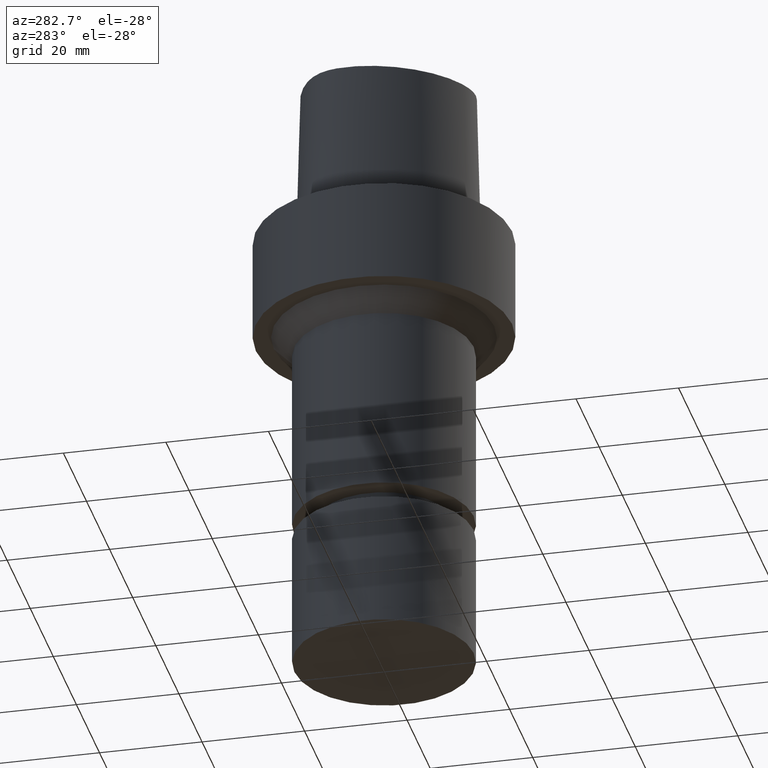
[diagram: clean part render]
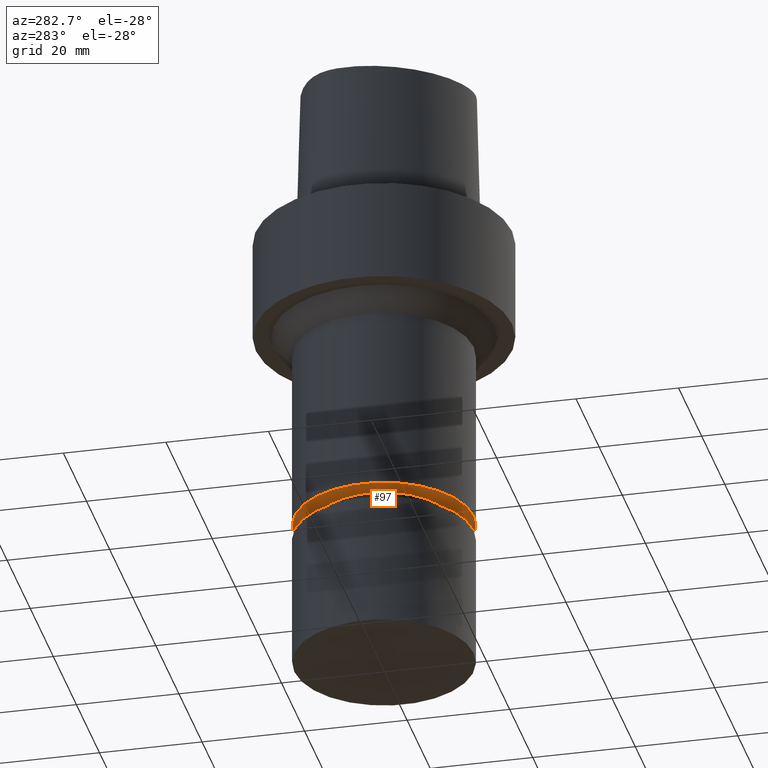
[diagram: same view with one face highlighted and labeled with its STEP entity id]
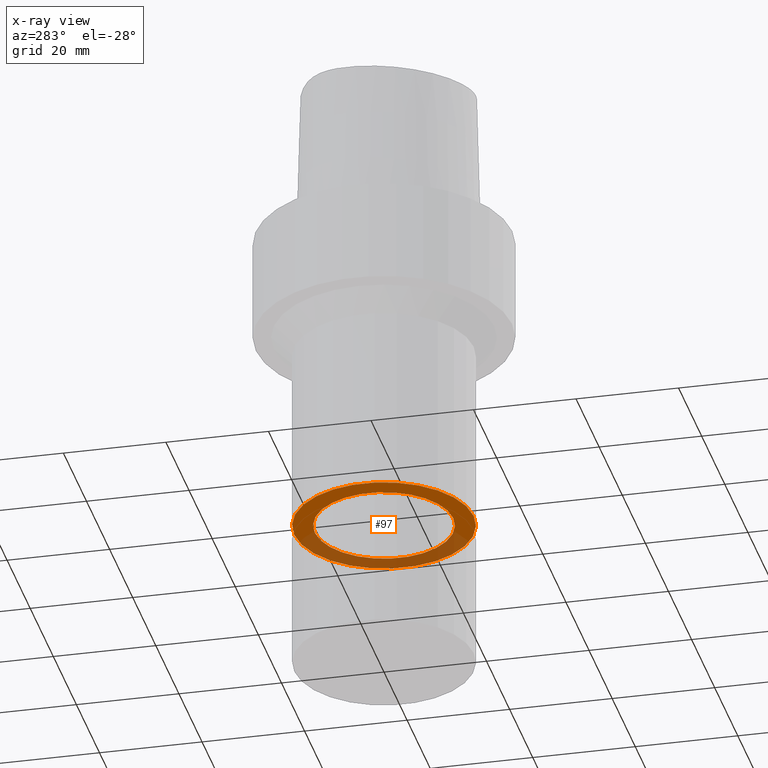
[diagram: x-ray of the same camera — body ghosted, the highlighted face saturated]
A machine part, auxiliary view. The second image highlights one B-rep face of the part: STEP entity #97.
The next image is the same camera in x-ray: the body ghosted, the highlighted face saturated — about 41% of this face is hidden behind the body in this view.
In plain terms, the highlighted planar face has unit normal (0, 0, -1).
Its self-contained STEP definition (entity closure, byte-faithful):
#68=EDGE_CURVE('Unnamed[1]',#172,#172,#173,.T.);
#97=ADVANCED_FACE('Unnamed[1]',(#215,#216),#217,.T.);
#115=EDGE_CURVE('Unnamed[1]',#240,#240,#241,.T.);
#172=VERTEX_POINT('',#310);
#173=CIRCLE('',#311,13.4999999999908);
#215=FACE_BOUND('',#795,.T.);
#216=FACE_OUTER_BOUND('',#796,.T.);
#217=PLANE('',#797);
#240=VERTEX_POINT('',#924);
#241=CIRCLE('',#925,17.4999999999997);
#310=CARTESIAN_POINT('',(3.70455656742073E-015,13.4999999999908,-60.4999999999998));
#311=AXIS2_PLACEMENT_3D('',#993,#994,#995);
#795=EDGE_LOOP('',(#1039));
#796=EDGE_LOOP('',(#1040));
#797=AXIS2_PLACEMENT_3D('',#1041,#1042,#1043);
#924=CARTESIAN_POINT('',(3.70455656742073E-015,17.4999999999997,-60.4999999999998));
#925=AXIS2_PLACEMENT_3D('',#1061,#1062,#1063);
#993=CARTESIAN_POINT('',(3.70455656742073E-015,7.40911313484146E-015,-60.4999999999998));
#994=DIRECTION('',(6.12323399573677E-017,1.22464679914735E-016,-1.0));
#995=DIRECTION('',(-1.23259516440783E-032,1.0,1.22464679914735E-016));
#1039=ORIENTED_EDGE('',*,*,#68,.F.);
#1040=ORIENTED_EDGE('',*,*,#115,.T.);
#1041=CARTESIAN_POINT('',(3.70455656742073E-015,15.4999999999953,-60.4999999999998));
#1042=DIRECTION('',(6.12323399573677E-017,1.22464679914735E-016,-1.0));
#1043=DIRECTION('',(-1.23259516440783E-032,1.0,1.22464679914735E-016));
#1061=CARTESIAN_POINT('',(3.70455656742073E-015,7.40911313484146E-015,-60.4999999999998));
#1062=DIRECTION('',(6.12323399573677E-017,1.22464679914735E-016,-1.0));
#1063=DIRECTION('',(-1.23259516440783E-032,1.0,1.22464679914735E-016));